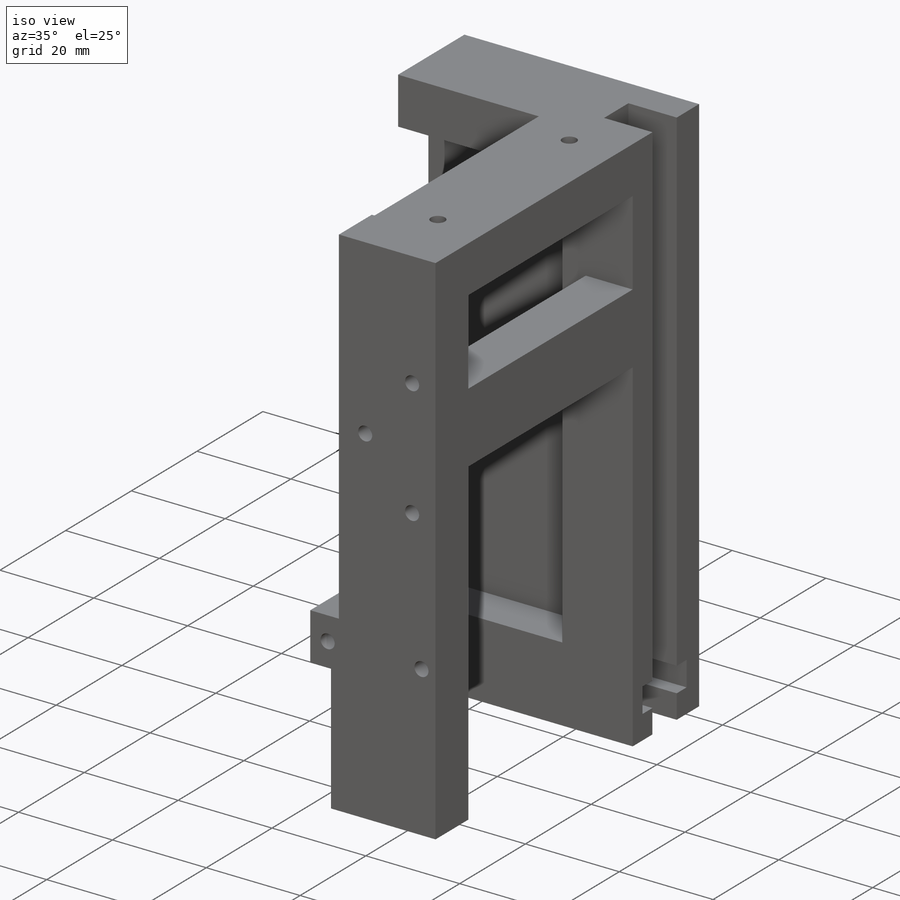
[diagram: iso view]
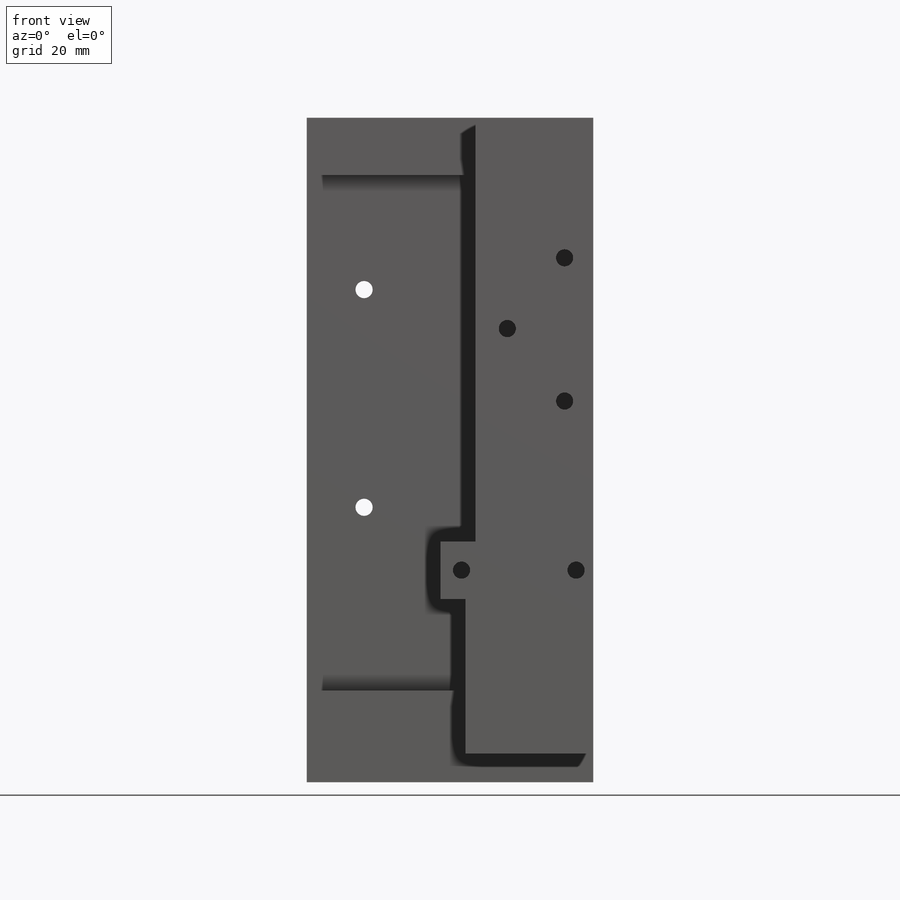
[diagram: front view]
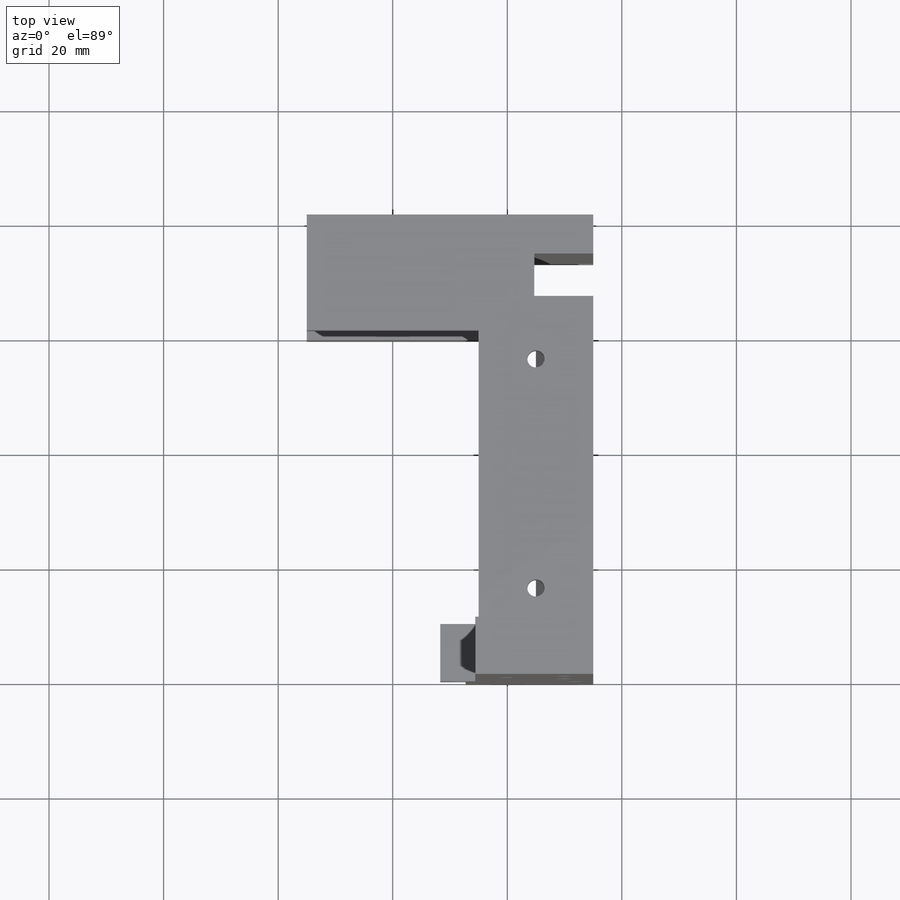
[diagram: top view]
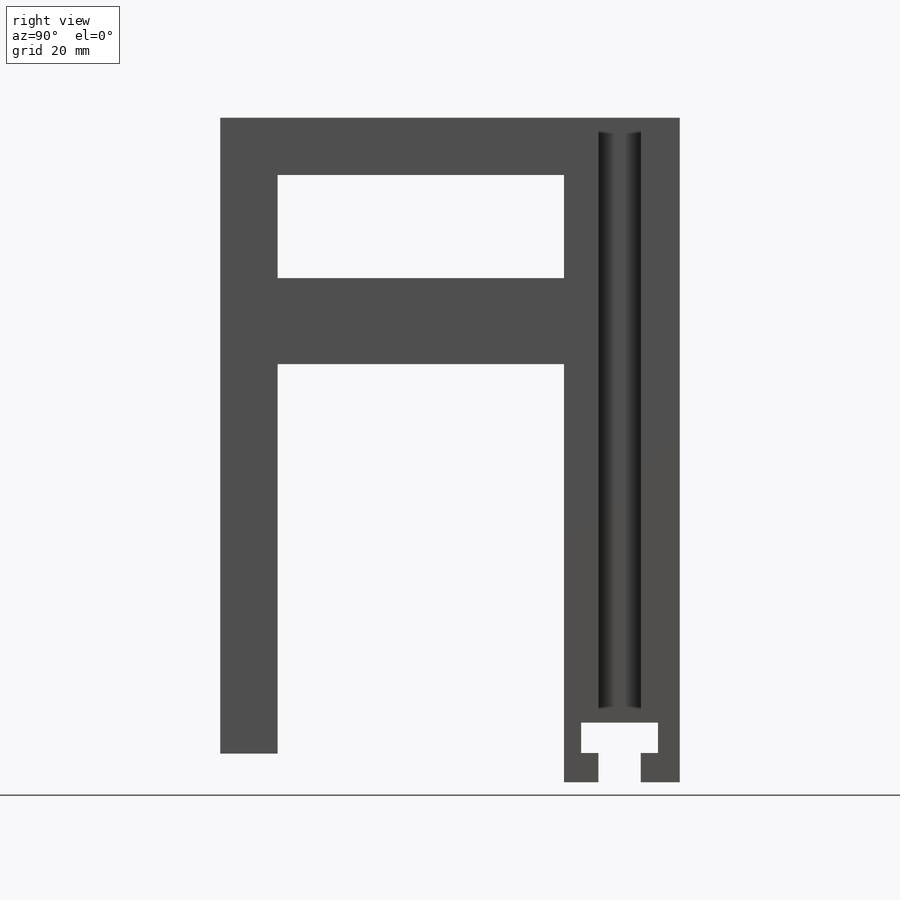
[diagram: right view]
SOLIDWORKS PART (.sldprt)
format: sldprt  version: not decoded by parser v0  size: 339,968 bytes
history: native  units: mm
features: sketch x8, cut_extrude x7, material x1, extrude x1 (+13 scaffold rows collapsed)
feature tree (30):
  scaffold x13  (default folders/planes/origin — collapsed)
  material  "Material <not specified>"
  sketch  "Sketch1"  dims[D1=18.0mm D2=0.0mm D3=15.0mm D4=10.0mm]
  extrude  "Boss-Extrude1"  [1 undecoded]
  sketch  "Sketch2"  dims[D1=6.8mm D2=5.1mm D3=7.4mm D4=0.0mm D5=0.0mm D6=5.3mm D7=13.4mm D8=3.0mm]
  cut_extrude  "Cut-Extrude1"  [1 undecoded]
  sketch  "Sketch3"  dims[D1=6.8mm D2=7.4mm D3=0.0mm D4=10.3mm]
  cut_extrude  "Cut-Extrude2"  [1 undecoded]
  sketch  "Sketch4"  dims[D1=0.0mm D2=0.0mm D3=37.0mm D4=10.0mm D5=0.0mm D6=0.0mm]
  cut_extrude  "Cut-Extrude3"  Depth=10mm
  sketch  "Sketch5"  dims[D1=10.0mm D2=0.0mm D3=90.0mm]
  cut_extrude  "Cut-Extrude4"  Depth=35mm
  sketch  "Sketch6"  dims[c1.D1=3.0mm c1.D2=3.0mm c1.D3=3.0mm c1.D4=3.0mm c1.D5=3.0mm c1.D6=3.0mm c1.D7=3.0mm c1.D8=3.0mm c2.D4=24.48mm c2.D5=5.0mm c2.D6=5.0mm c2.D7=15.0mm c2.D8=25.0mm]
  cut_extrude  "Cut-Extrude5"  Depth=13mm
  sketch  "Sketch8"  dims[c1.D1=3.0mm c1.D2=3.0mm c1.D3=3.0mm c1.D4=3.0mm c1.D5=3.0mm c1.D6=3.0mm c2.D3=10.0mm c2.D4=10.0mm c2.D5=38.0mm c2.D6=20.0mm]
  cut_extrude  "Cut-Extrude6"  Depth=13mm
  sketch  "Sketch9"  dims[c1.D1=3.0mm c1.D2=3.0mm c1.D3=3.0mm c1.D4=~4.234934mm c1.D5=3.0mm c1.D6=3.0mm c2.D2=15.0mm c2.D3=10.0mm c2.D4=10.0mm c2.D6=40.0mm]
  cut_extrude  "Cut-Extrude7"  Depth=13mm
decode coverage: 13 of 16 modeling features carry decoded parameters
note: ~ marks probable driven/reference dimensions
note: 3 parameter values undecoded
summary: no parameter record found for 3 features
note: suppression state not decoded; provenance and decode notes live in map.json
